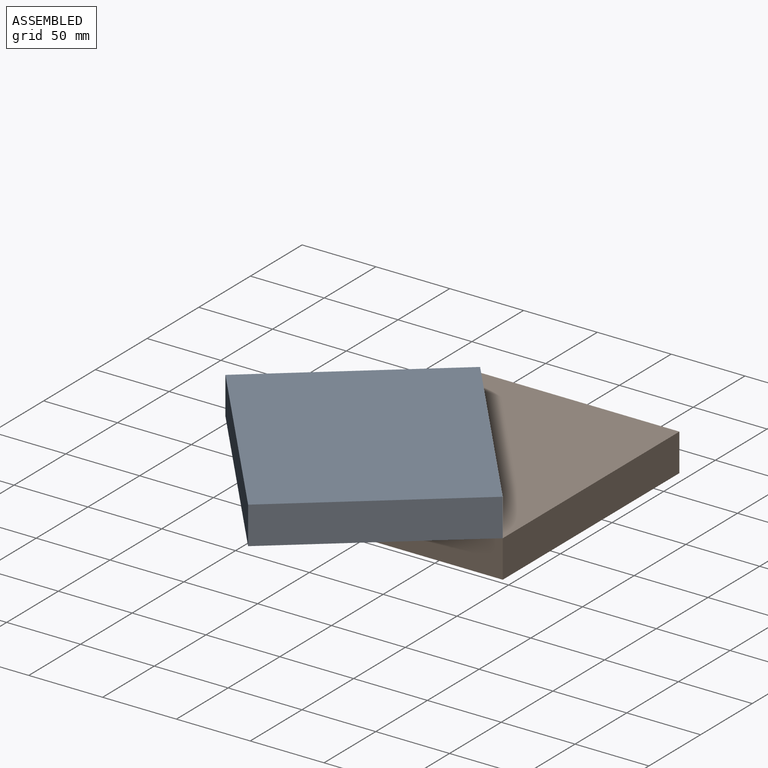
[diagram: assembled view]
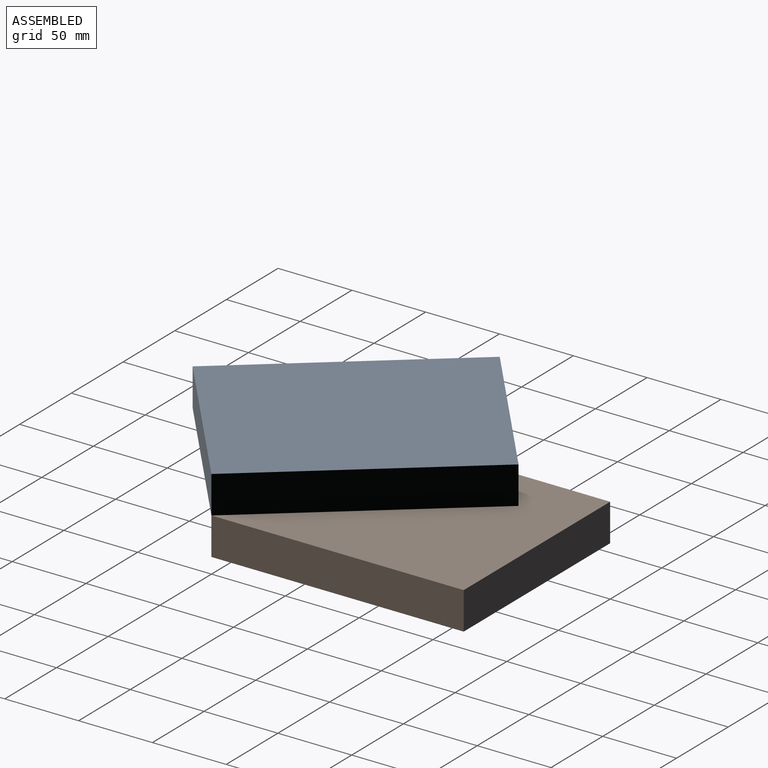
[diagram: assembled view, second angle]
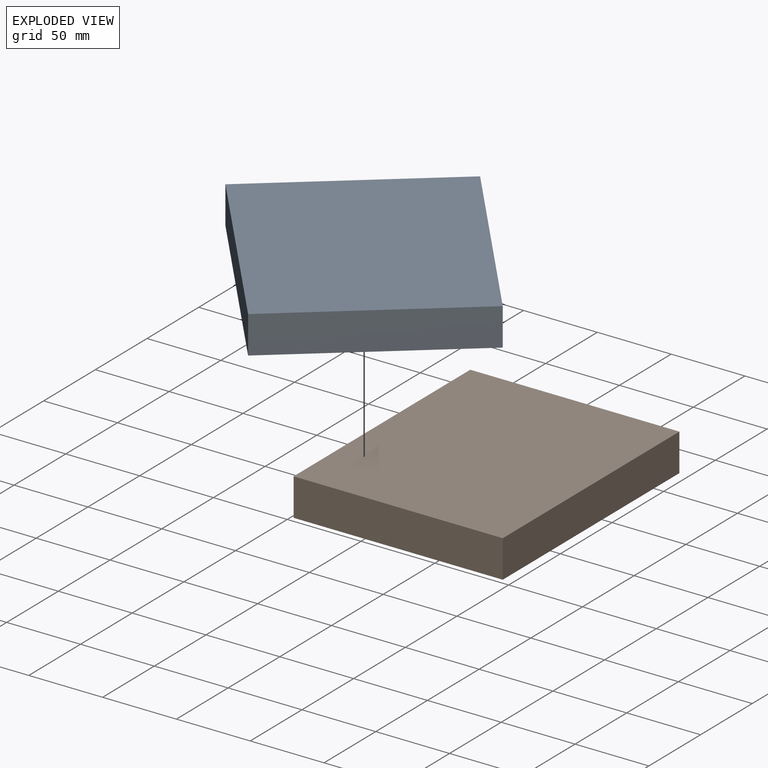
[diagram: exploded view]
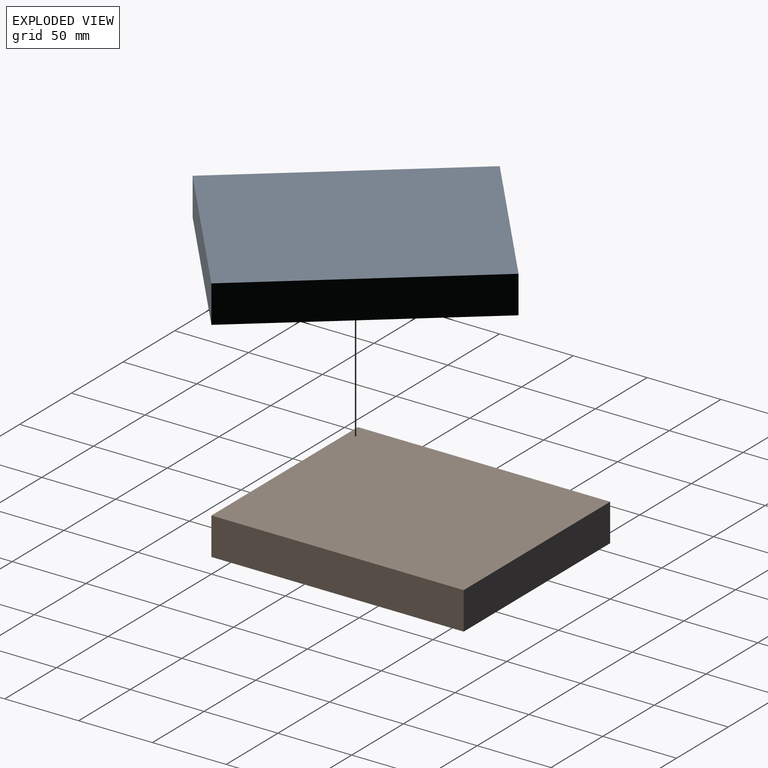
[diagram: exploded view, second angle]
ASSEMBLY  parts=2 mates=2
PART A: 6 faces, bbox 141.7x170.9x25.4 mm
  f0: plane 141.69x25.4mm, normal (0,1,0), area 3599mm2, adj f1,f3,f4,f5
  f1: plane 170.89x25.4mm, normal (-1,0,0), area 4340.7mm2, adj f0,f2,f4,f5
  f2: plane 141.69x25.4mm, normal (0,-1,0), area 3599mm2, adj f1,f3,f4,f5
  f3: plane 170.89x25.4mm, normal (1,0,0), area 4340.7mm2, adj f0,f2,f4,f5
  f4: plane 170.89x141.69mm, normal (0,0,1), area 24214.2mm2, adj f0,f1,f2,f3
  f5: plane 170.89x141.69mm, normal (0,0,-1), area 24214.2mm2, adj f0,f1,f2,f3
PART B: same geometry as A
PLACE A rot(axis=(0,0,1),39.2deg) t=(-38.07,-64.05,25.4)mm
PLACE B at identity fixed
MATE revolute A.f5 <-> B.f4  axis (0,0,-1) through (70.85,-85.45,25.4)mm
MATE planar B.f4 <-> A.f5  axis (0,0,1) through (0,0,25.4)mm
